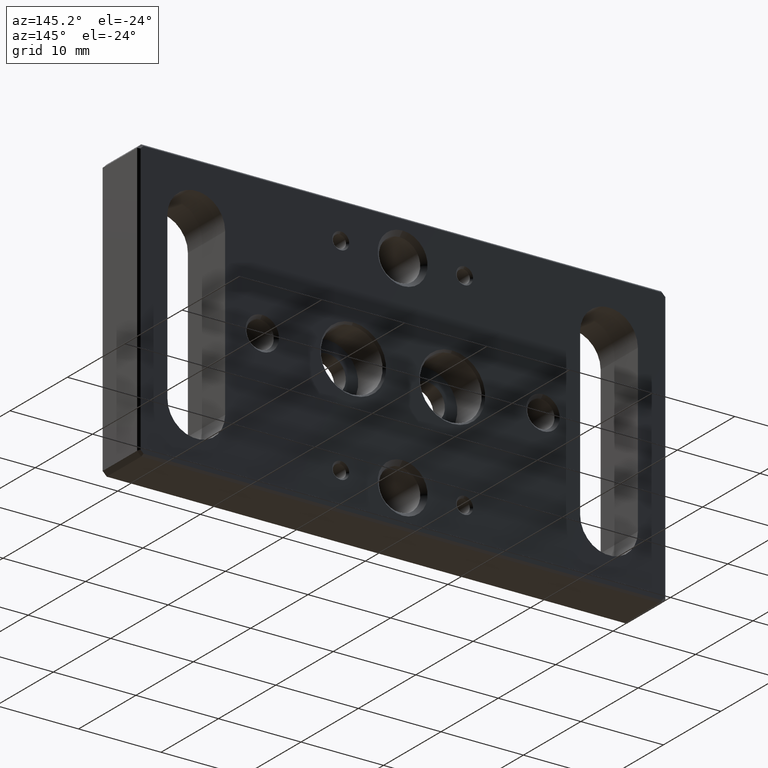
[diagram: clean part render]
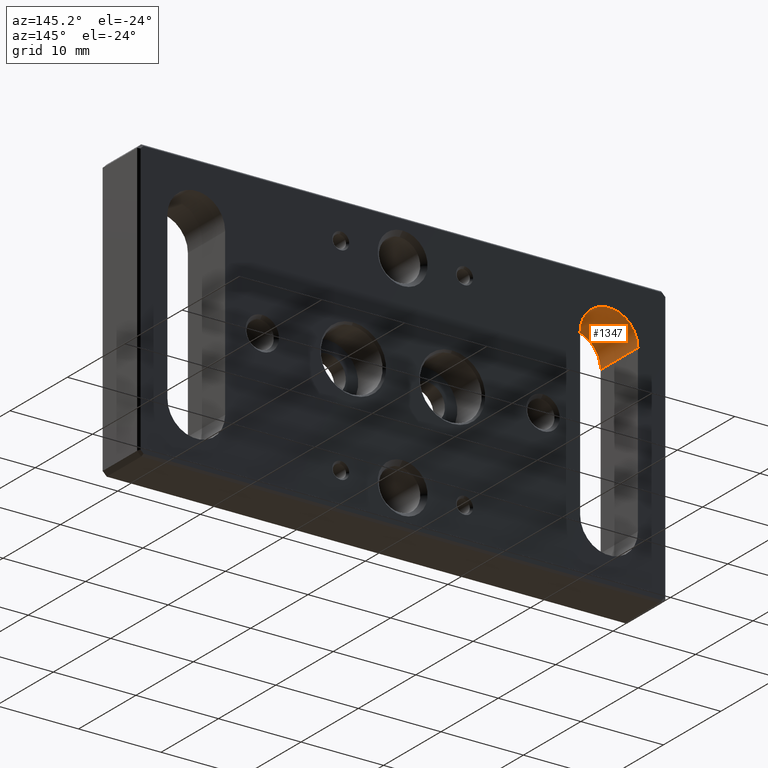
[diagram: same view with one face highlighted and labeled with its STEP entity id]
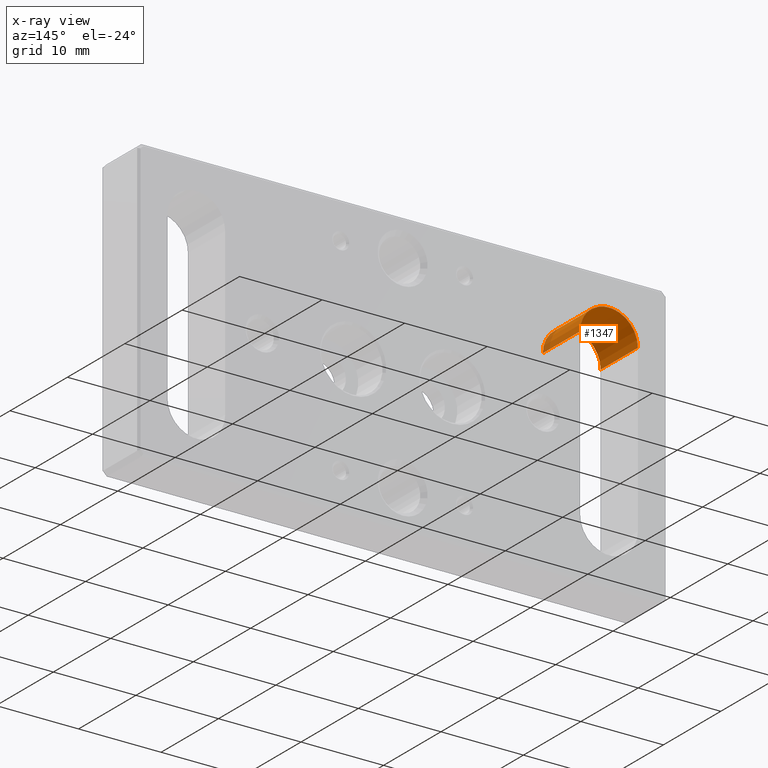
[diagram: x-ray of the same camera — body ghosted, the highlighted face saturated]
A machine part, auxiliary view. The second image highlights one B-rep face of the part: STEP entity #1347.
The next image is the same camera in x-ray: the body ghosted, the highlighted face saturated — about 4% of this face is hidden behind the body in this view.
In plain terms, the highlighted cylindrical surface (edge-blend (fillet) strip) has radius 3.5 mm, axis along (-0, 1, -0).
Its self-contained STEP definition (entity closure, byte-faithful):
#9 = CARTESIAN_POINT ( 'NONE',  ( -21.50000000000000000, 0.000000000000000000, 10.00000000000000000 ) ) ;
#21 = EDGE_CURVE ( 'NONE', #560, #1157, #1317, .T. ) ;
#37 = DIRECTION ( 'NONE',  ( -0.000000000000000000, 1.000000000000000000, -0.000000000000000000 ) ) ;
#45 = EDGE_LOOP ( 'NONE', ( #1029, #306, #478, #169 ) ) ;
#49 = DIRECTION ( 'NONE',  ( 0.000000000000000000, 1.000000000000000000, 0.000000000000000000 ) ) ;
#109 = CARTESIAN_POINT ( 'NONE',  ( -24.99999999999999645, 6.500000000000000000, 10.00000000000000000 ) ) ;
#118 = DIRECTION ( 'NONE',  ( 0.000000000000000000, 1.000000000000000000, 0.000000000000000000 ) ) ;
#147 = CARTESIAN_POINT ( 'NONE',  ( -24.99999999999999645, 0.000000000000000000, 10.00000000000000000 ) ) ;
#169 = ORIENTED_EDGE ( 'NONE', *, *, #485, .T. ) ;
#170 = CARTESIAN_POINT ( 'NONE',  ( -28.49999999999999645, 0.000000000000000000, 10.00000000000000000 ) ) ;
#242 = CARTESIAN_POINT ( 'NONE',  ( -21.50000000000000000, 0.000000000000000000, 10.00000000000000000 ) ) ;
#306 = ORIENTED_EDGE ( 'NONE', *, *, #771, .F. ) ;
#369 = LINE ( 'NONE', #242, #972 ) ;
#393 = DIRECTION ( 'NONE',  ( 0.000000000000000000, 0.000000000000000000, 1.000000000000000000 ) ) ;
#438 = VERTEX_POINT ( 'NONE', #619 ) ;
#478 = ORIENTED_EDGE ( 'NONE', *, *, #21, .F. ) ;
#485 = EDGE_CURVE ( 'NONE', #560, #1041, #757, .T. ) ;
#510 = DIRECTION ( 'NONE',  ( -0.000000000000000000, 1.000000000000000000, -0.000000000000000000 ) ) ;
#560 = VERTEX_POINT ( 'NONE', #170 ) ;
#565 = AXIS2_PLACEMENT_3D ( 'NONE', #109, #118, #1241 ) ;
#590 = CARTESIAN_POINT ( 'NONE',  ( -28.49999999999999645, 6.500000000000000000, 10.00000000000000000 ) ) ;
#617 = VECTOR ( 'NONE', #37, 1000.000000000000000 ) ;
#619 = CARTESIAN_POINT ( 'NONE',  ( -21.50000000000000000, 6.500000000000000000, 10.00000000000000000 ) ) ;
#631 = CYLINDRICAL_SURFACE ( 'NONE', #1324, 3.499999999999999556 ) ;
#640 = FACE_OUTER_BOUND ( 'NONE', #45, .T. ) ;
#757 = LINE ( 'NONE', #1046, #617 ) ;
#771 = EDGE_CURVE ( 'NONE', #1157, #438, #369, .T. ) ;
#808 = DIRECTION ( 'NONE',  ( 0.000000000000000000, 0.000000000000000000, 1.000000000000000000 ) ) ;
#823 = EDGE_CURVE ( 'NONE', #1041, #438, #1409, .T. ) ;
#972 = VECTOR ( 'NONE', #1025, 1000.000000000000000 ) ;
#1025 = DIRECTION ( 'NONE',  ( -0.000000000000000000, 1.000000000000000000, -0.000000000000000000 ) ) ;
#1029 = ORIENTED_EDGE ( 'NONE', *, *, #823, .T. ) ;
#1041 = VERTEX_POINT ( 'NONE', #590 ) ;
#1046 = CARTESIAN_POINT ( 'NONE',  ( -28.49999999999999645, 0.000000000000000000, 10.00000000000000000 ) ) ;
#1139 = CARTESIAN_POINT ( 'NONE',  ( -24.99999999999999645, 0.000000000000000000, 10.00000000000000000 ) ) ;
#1157 = VERTEX_POINT ( 'NONE', #9 ) ;
#1241 = DIRECTION ( 'NONE',  ( 0.000000000000000000, 0.000000000000000000, 1.000000000000000000 ) ) ;
#1317 = CIRCLE ( 'NONE', #1428, 3.499999999999999556 ) ;
#1324 = AXIS2_PLACEMENT_3D ( 'NONE', #1139, #510, #393 ) ;
#1347 = ADVANCED_FACE ( 'NONE', ( #640 ), #631, .F. ) ;
#1409 = CIRCLE ( 'NONE', #565, 3.499999999999999556 ) ;
#1428 = AXIS2_PLACEMENT_3D ( 'NONE', #147, #49, #808 ) ;